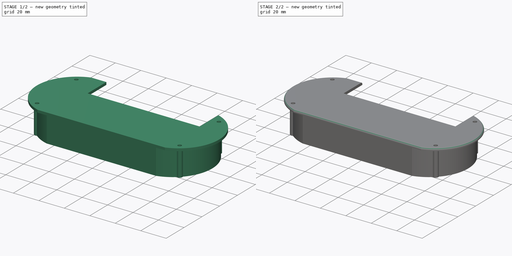
[diagram: build sequence overview — one tinted view per stage of 2, left to right]
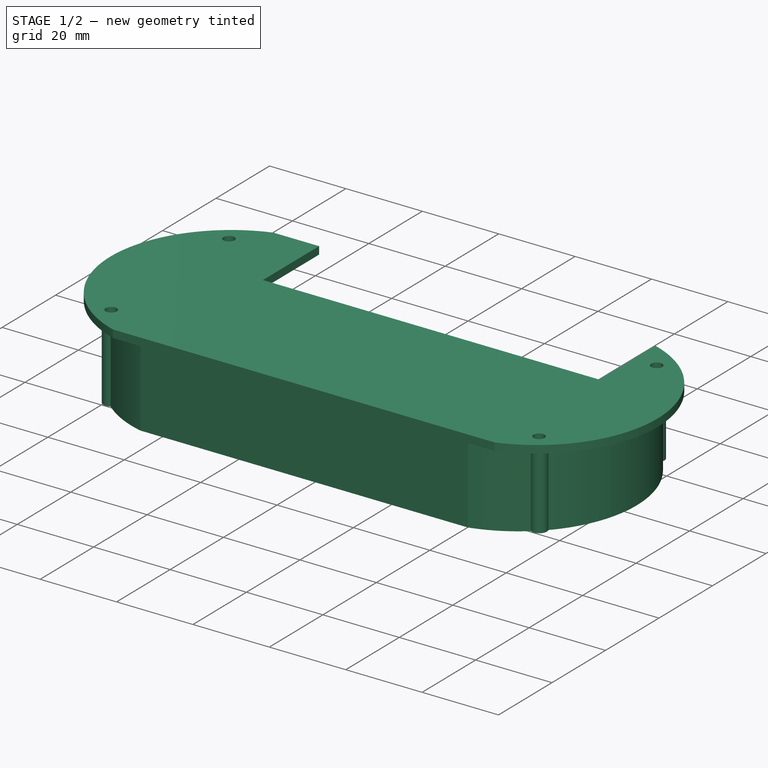
[diagram: stage 1 of 2 — iso view after this stage's code; geometry added in this stage tinted green]
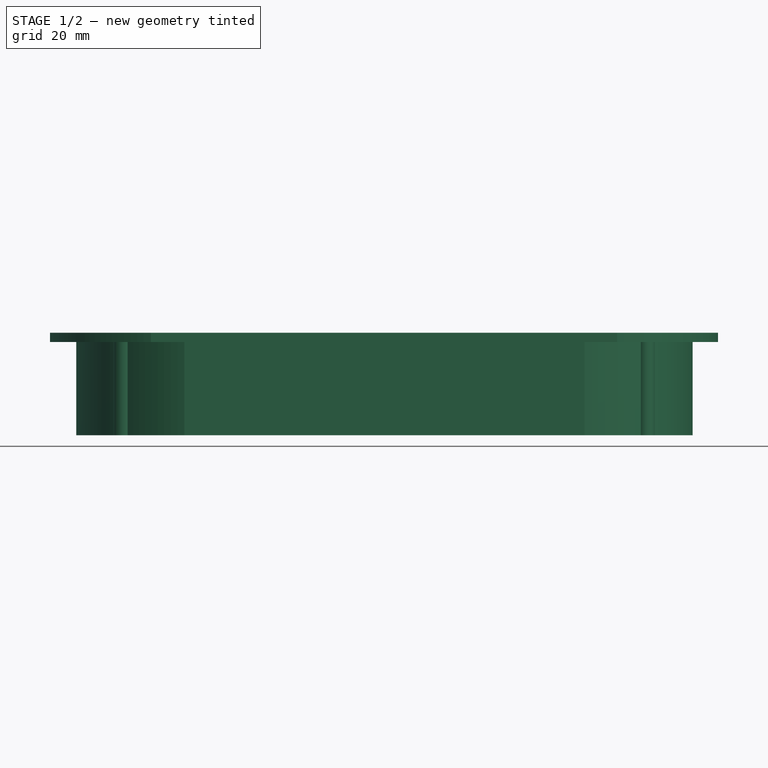
[diagram: stage 1 of 2 — front view after this stage's code; geometry added in this stage tinted green]
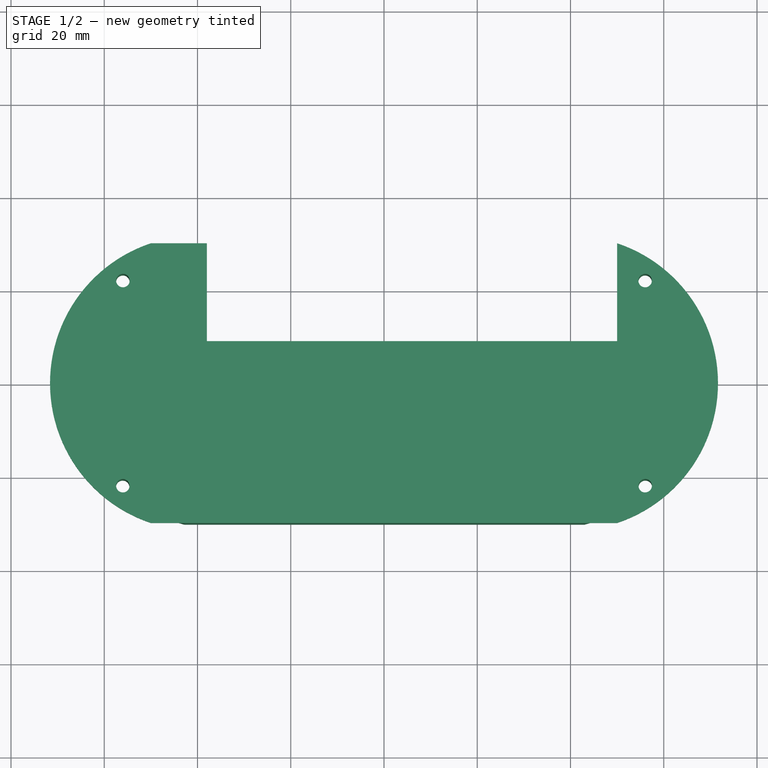
[diagram: stage 1 of 2 — top view after this stage's code; geometry added in this stage tinted green]
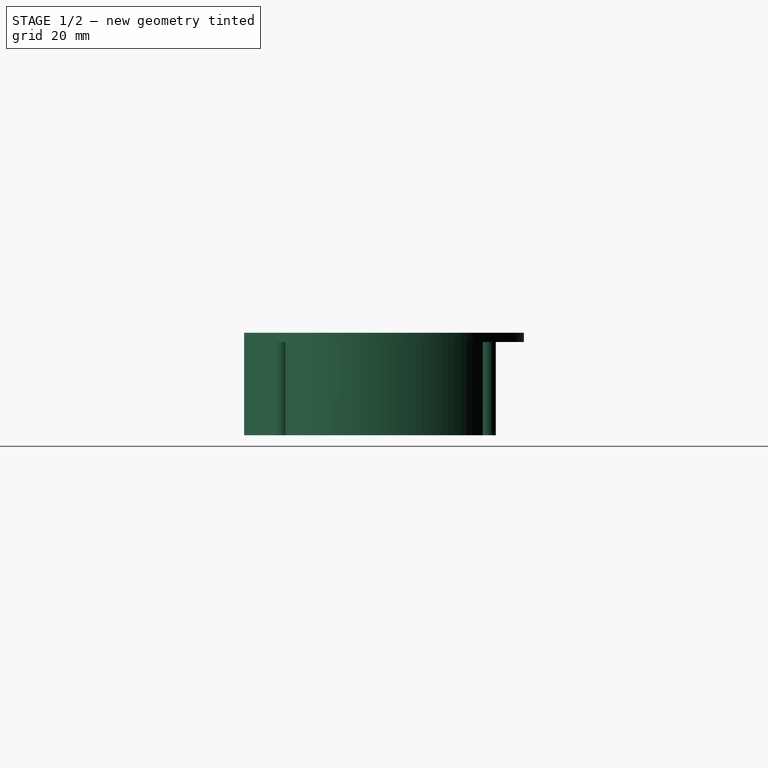
[diagram: stage 1 of 2 — right view after this stage's code; geometry added in this stage tinted green]
FCSTD DOCUMENT  (FreeCAD 0.20R29410 (Git))
Label: ggp-backplate
License: All rights reserved
LicenseURL: http://en.wikipedia.org/wiki/All_rights_reserved
objects: Sketcher::SketchObject×4, PartDesign::Pad×2, PartDesign::Pocket×2, PartDesign::Fillet×1, PartDesign::Body×1
note: 15 computed .brp shape members not serialized (recipe doc carries the construction recipe); baked Part::Feature solids carry a one-line shape summary decoded from their .brp

FEATURE [Sketcher::SketchObject] Sketch
  FullyConstrained = true
  MapMode = 5
  Support = -> [XY_Plane001]
  sketch-geometry (4):
    g0: LineSegment StartX=-50 StartY=30 StartZ=0 EndX=50 EndY=30 EndZ=0
    g1: LineSegment StartX=-50 StartY=-30 StartZ=0 EndX=50 EndY=-30 EndZ=0
    g2: ArcOfCircle CenterX=-40.0088 CenterY=0 CenterZ=0 NormalX=0 NormalY=0 NormalZ=1 AngleXU=0 Radius=31.62 StartAngle=1.89228 EndAngle=4.3909
    g3: ArcOfCircle CenterX=40.0088 CenterY=0 CenterZ=0 NormalX=0 NormalY=0 NormalZ=1 AngleXU=0 Radius=31.62 StartAngle=5.03388 EndAngle=7.53249
  constraints (14):
    c: Horizontal(g0)
    c: Horizontal(g1)
    c: PointOnObject(g2,g-1)
    c: Coincident(g2,g0)
    c: Coincident(g2,g1)
    c: PointOnObject(g3,g-1)
    c: Coincident(g3,g0)
    c: Coincident(g3,g1)
    c: DistanceX(g0) = 50
    c: DistanceY(g0) = 30
    c: DistanceX(g1) = 50
    c: DistanceX(g1) = -50
    c: Radius(g3) = 31.62
    c: Radius(g2) = 31.62
FEATURE [PartDesign::Pad] Pad
  Direction = (0,0,1)
  Length = 2
  Length2 = 10
  Profile = -> Sketch
  ReferenceAxis = -> Sketch [N_Axis]
  Type = 0
FEATURE [Sketcher::SketchObject] Sketch001
  ExternalGeometry = -> [Pad]
  FullyConstrained = true
  MapMode = 5
  Placement = pos=(0,0,2) rot=(0,0,1;0rad)
  Support = -> [Pad]
  sketch-geometry (4):
    g0: LineSegment StartX=-38 StartY=30 StartZ=0 EndX=-38 EndY=9 EndZ=0
    g1: LineSegment StartX=50 StartY=30 StartZ=0 EndX=50 EndY=9 EndZ=0
    g2: LineSegment StartX=50 StartY=9 StartZ=0 EndX=-38 EndY=9 EndZ=0
    g3: LineSegment StartX=-38 StartY=30 StartZ=0 EndX=50 EndY=30 EndZ=0
  constraints (12):
    c: PointOnObject(g0,g-3)
    c: Vertical(g0)
    c: PointOnObject(g1,g-3)
    c: Vertical(g1)
    c: Coincident(g2,g1)
    c: Coincident(g2,g0)
    c: Horizontal(g2)
    c: Coincident(g3,g0)
    c: Coincident(g3,g1)
    c: DistanceY(g1) = 9
    c: DistanceX(g0) = -38
    c: DistanceX(g1) = 50
FEATURE [PartDesign::Pocket] Pocket
  BaseFeature = -> Pad
  Direction = (0,0,-1)
  Length = 5
  Length2 = 5
  Profile = -> Sketch001
  ReferenceAxis = -> Sketch001 [N_Axis]
  Type = 0
FEATURE [Sketcher::SketchObject] Sketch002
  FullyConstrained = true
  MapMode = 5
  Placement = pos=(0,0,2) rot=(0,0,1;0rad)
  Support = -> [Pocket]
  sketch-geometry (4):
    g0: Circle CenterX=-56 CenterY=22 CenterZ=0 NormalX=0 NormalY=0 NormalZ=1 AngleXU=0 Radius=1.45
    g1: Circle CenterX=-56 CenterY=-22 CenterZ=0 NormalX=0 NormalY=0 NormalZ=1 AngleXU=0 Radius=1.45
    g2: Circle CenterX=56 CenterY=22 CenterZ=0 NormalX=0 NormalY=0 NormalZ=1 AngleXU=0 Radius=1.45
    g3: Circle CenterX=56 CenterY=-22 CenterZ=0 NormalX=0 NormalY=0 NormalZ=1 AngleXU=0 Radius=1.45
  constraints (12):
    c: Radius(g0) = 1.45
    c: DistanceX(g0) = -56
    c: DistanceY(g0) = 22
    c: Radius(g1) = 1.45
    c: DistanceX(g1) = -56
    c: DistanceY(g1) = -22
    c: Radius(g2) = 1.45
    c: Radius(g3) = 1.45
    c: DistanceX(g3) = 56
    c: DistanceY(g3) = -22
    c: DistanceX(g2) = 56
    c: DistanceY(g2) = 22
FEATURE [PartDesign::Pocket] Pocket001
  BaseFeature = -> Pocket
  Direction = (0,0,-1)
  Length = 5
  Length2 = 5
  Profile = -> Sketch002
  ReferenceAxis = -> Sketch002 [N_Axis]
  Type = 0
FEATURE [Sketcher::SketchObject] Sketch005
  ExternalGeometry = -> [Pocket001]
  FullyConstrained = true
  MapMode = 2
  Placement = pos=(0,0,0) rot=(1,0,0;3.14159rad)
  Support = -> [Sketch005]
  sketch-geometry (20):
    g0: Circle CenterX=-56.042 CenterY=22 CenterZ=0 NormalX=0 NormalY=0 NormalZ=1 AngleXU=0 Radius=1.45
    g1: Circle CenterX=56.0457 CenterY=22 CenterZ=0 NormalX=0 NormalY=0 NormalZ=1 AngleXU=0 Radius=1.45
    g2: Circle CenterX=56 CenterY=-22 CenterZ=0 NormalX=0 NormalY=0 NormalZ=1 AngleXU=0 Radius=1.45
    g3: Circle CenterX=-56 CenterY=-22 CenterZ=0 NormalX=0 NormalY=0 NormalZ=1 AngleXU=0 Radius=1.45
    g4: ArcOfCircle CenterX=35.1887 CenterY=0 CenterZ=0 NormalX=0 NormalY=0 NormalZ=1 AngleXU=0 Radius=31 StartAngle=5.53098 EndAngle=7.03394
    g5: ArcOfCircle CenterX=35 CenterY=0 CenterZ=0 NormalX=0 NormalY=0 NormalZ=1 AngleXU=0 Radius=30 StartAngle=5.53933 EndAngle=7.02622
    g6: ArcOfCircle CenterX=-35 CenterY=0 CenterZ=0 NormalX=0 NormalY=0 NormalZ=1 AngleXU=0 Radius=31 StartAngle=2.39648 EndAngle=3.88796
    g7: ArcOfCircle CenterX=-34.9242 CenterY=0 CenterZ=0 NormalX=0 NormalY=0 NormalZ=1 AngleXU=0 Radius=30 StartAngle=2.39981 EndAngle=3.8841
    g8: ArcOfCircle CenterX=-35 CenterY=0 CenterZ=0 NormalX=0 NormalY=0 NormalZ=1 AngleXU=0 Radius=31 StartAngle=1.82548 EndAngle=2.2714
    g9: ArcOfCircle CenterX=-34.9242 CenterY=0 CenterZ=0 NormalX=0 NormalY=0 NormalZ=1 AngleXU=0 Radius=30 StartAngle=1.82975 EndAngle=2.27166
    g10: ArcOfCircle CenterX=35.1887 CenterY=0 CenterZ=0 NormalX=0 NormalY=0 NormalZ=1 AngleXU=0 Radius=31 StartAngle=0.87337 EndAngle=1.31611
    g11: ArcOfCircle CenterX=35 CenterY=0 CenterZ=0 NormalX=0 NormalY=0 NormalZ=1 AngleXU=0 Radius=30 StartAngle=0.872092 EndAngle=1.31184
    g12: LineSegment StartX=-42.6064 StartY=28.9997 StartZ=0 EndX=42.6821 EndY=28.9997 EndZ=0
    g13: LineSegment StartX=42.9989 StartY=30 StartZ=0 EndX=-42.8103 EndY=30 EndZ=0
    g14: ArcOfCircle CenterX=56.0457 CenterY=22 CenterZ=0 NormalX=0 NormalY=0 NormalZ=1 AngleXU=0 Radius=2 StartAngle=5.84308 EndAngle=8.34742
    g15: ArcOfCircle CenterX=56.0457 CenterY=22 CenterZ=0 NormalX=0 NormalY=0 NormalZ=1 AngleXU=0 Radius=2 StartAngle=2.63507 EndAngle=5.26325
    g16: ArcOfCircle CenterX=56 CenterY=-22 CenterZ=0 NormalX=0 NormalY=0 NormalZ=1 AngleXU=0 Radius=2 StartAngle=1.00284 EndAngle=6.70527
    g17: ArcOfCircle CenterX=-56.042 CenterY=22 CenterZ=0 NormalX=0 NormalY=0 NormalZ=1 AngleXU=0 Radius=2 StartAngle=1.01406 EndAngle=3.65382
    g18: ArcOfCircle CenterX=-56.042 CenterY=22 CenterZ=0 NormalX=0 NormalY=0 NormalZ=1 AngleXU=0 Radius=2 StartAngle=4.18866 EndAngle=6.76599
    g19: ArcOfCircle CenterX=-56 CenterY=-22 CenterZ=0 NormalX=0 NormalY=0 NormalZ=1 AngleXU=0 Radius=2 StartAngle=2.64562 EndAngle=8.39353
  constraints (64):
    c: Radius(g1) = 1.45
    c: Radius(g2) = 1.45
    c: Radius(g0) = 1.45
    c: Radius(g3) = 1.45
    c: PointOnObject(g4,g-1)
    c: PointOnObject(g5,g-1)
    c: PointOnObject(g6,g-1)
    c: PointOnObject(g7,g-1)
    c: Coincident(g8,g6)
    c: PointOnObject(g8,g-4)
    c: Coincident(g9,g7)
    c: Coincident(g10,g4)
    c: PointOnObject(g10,g-4)
    c: Coincident(g11,g5)
    c: Coincident(g12,g9)
    c: Coincident(g12,g11)
    c: Horizontal(g12)
    c: Coincident(g13,g10)
    c: Coincident(g13,g8)
    c: Radius(g6) = 31
    c: Radius(g7) = 30
    c: Radius(g8) = 31
    c: Radius(g9) = 30
    c: Radius(g5) = 30
    c: Radius(g4) = 31
    c: Radius(g11) = 30
    c: Radius(g10) = 31
    c: DistanceY(g11) = 28.9997
    c: DistanceX(g10) = 42.9989
    c: DistanceX(g11) = 42.6821
    c: Coincident(g14,g1)
    c: Coincident(g14,g10)
    c: Coincident(g14,g4)
    c: Coincident(g15,g1)
    c: Coincident(g15,g5)
    c: Coincident(g15,g11)
    c: Coincident(g16,g2)
    c: Coincident(g16,g5)
    c: Coincident(g16,g4)
    c: Coincident(g17,g0)
    c: Coincident(g17,g8)
    c: Coincident(g17,g6)
    c: Coincident(g18,g0)
    c: Coincident(g18,g9)
    c: Coincident(g18,g7)
    c: Coincident(g19,g3)
    c: Coincident(g19,g7)
    c: Coincident(g19,g6)
    c: Radius(g19) = 2
    c: Radius(g17) = 2
    c: Radius(g18) = 2
    c: Radius(g14) = 2
    c: Radius(g15) = 2
    c: Radius(g16) = 2
    c: DistanceX(g9) = -42.6064
    c: DistanceX(g0) = -56.042
    c: DistanceY(g0) = 22
    c: DistanceX(g3) = -56
    c: DistanceY(g3) = -22
    c: DistanceX(g6) = -57.759
    c: DistanceX(g2) = 56
    c: DistanceY(g2) = -22
    c: DistanceX(g1) = 56.0457
    c: DistanceY(g1) = 22
FEATURE [PartDesign::Pad] Pad001
  BaseFeature = -> Pocket001
  Direction = (0,0,-1)
  Length = 20
  Length2 = 10
  Profile = -> Sketch005
  ReferenceAxis = -> Sketch005 [N_Axis]
  Type = 0
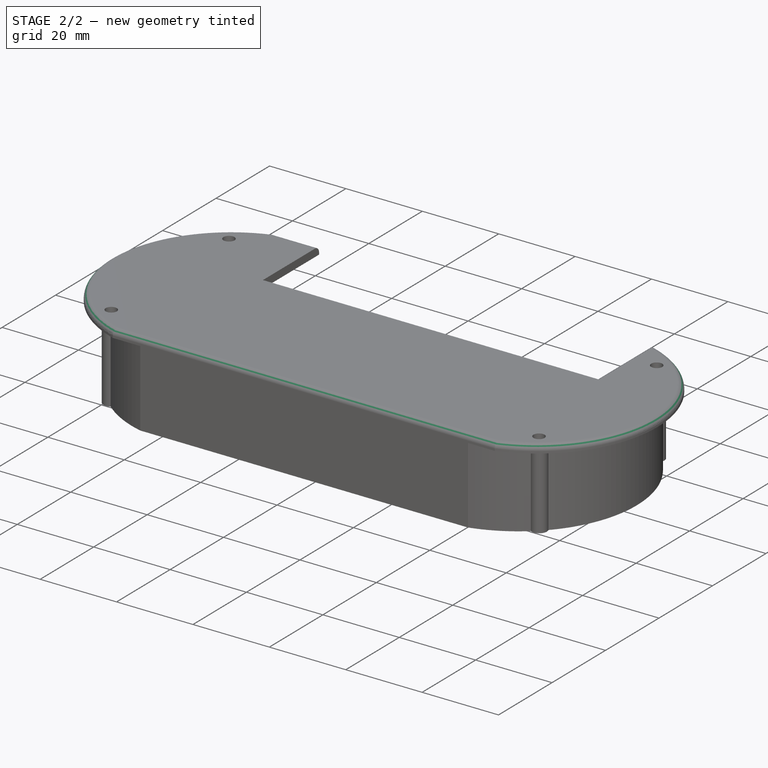
[diagram: stage 2 of 2 — iso view after this stage's code; geometry added in this stage tinted green]
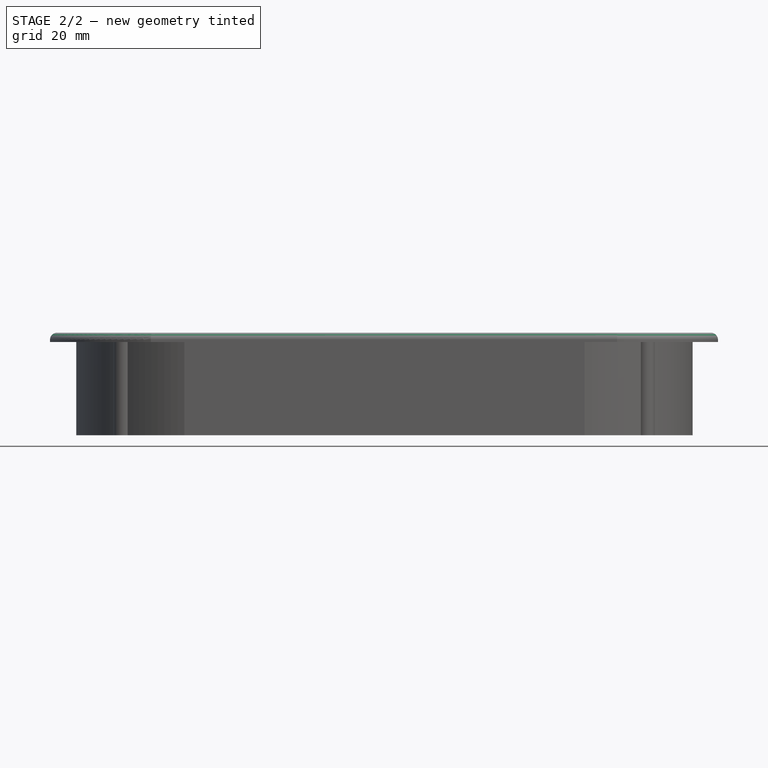
[diagram: stage 2 of 2 — front view after this stage's code; geometry added in this stage tinted green]
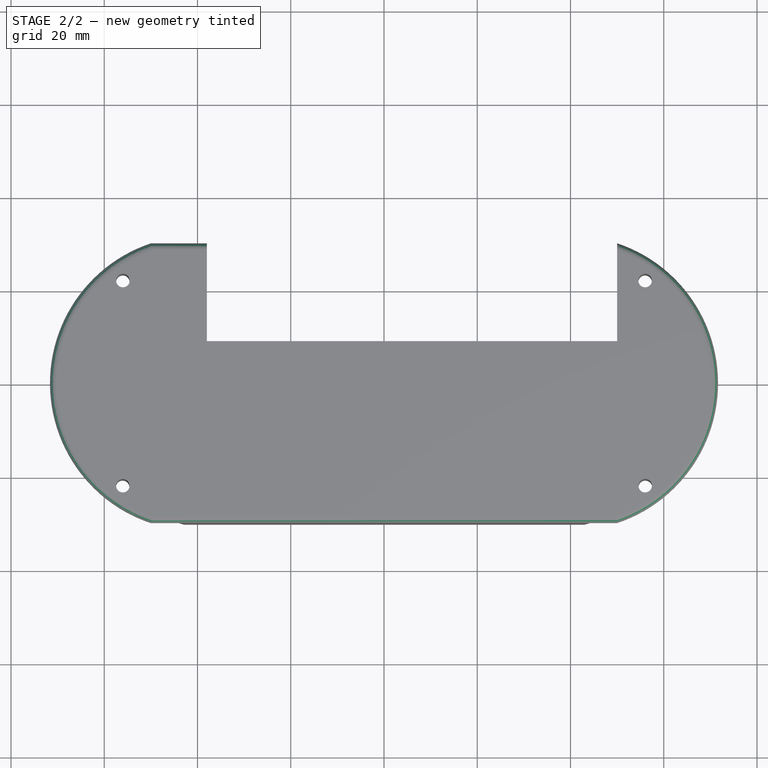
[diagram: stage 2 of 2 — top view after this stage's code; geometry added in this stage tinted green]
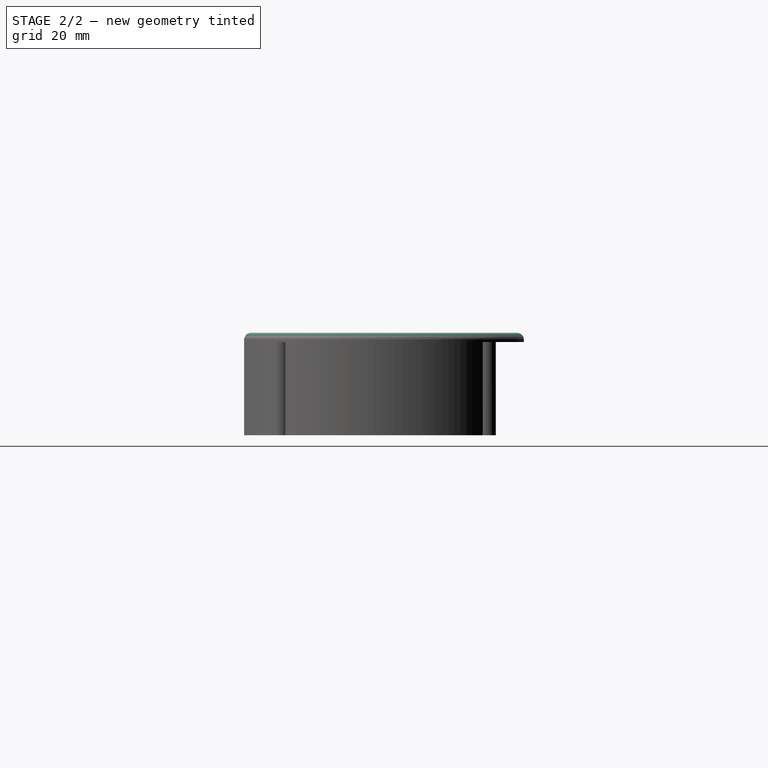
[diagram: stage 2 of 2 — right view after this stage's code; geometry added in this stage tinted green]
FEATURE [PartDesign::Fillet] Fillet
  Base = -> Pad001 [Edge4,Edge7,Edge12,Edge34]
  BaseFeature = -> Pad001
  Radius = 1.5
  SupportTransform = false
  UseAllEdges = false
FEATURE [PartDesign::Body] Body
  Group = -> [Sketch,Pad,Sketch001,Pocket,Sketch002,Pocket001,Sketch005,Pad001,Fillet]
  Origin = -> Origin
  Tip = -> Fillet
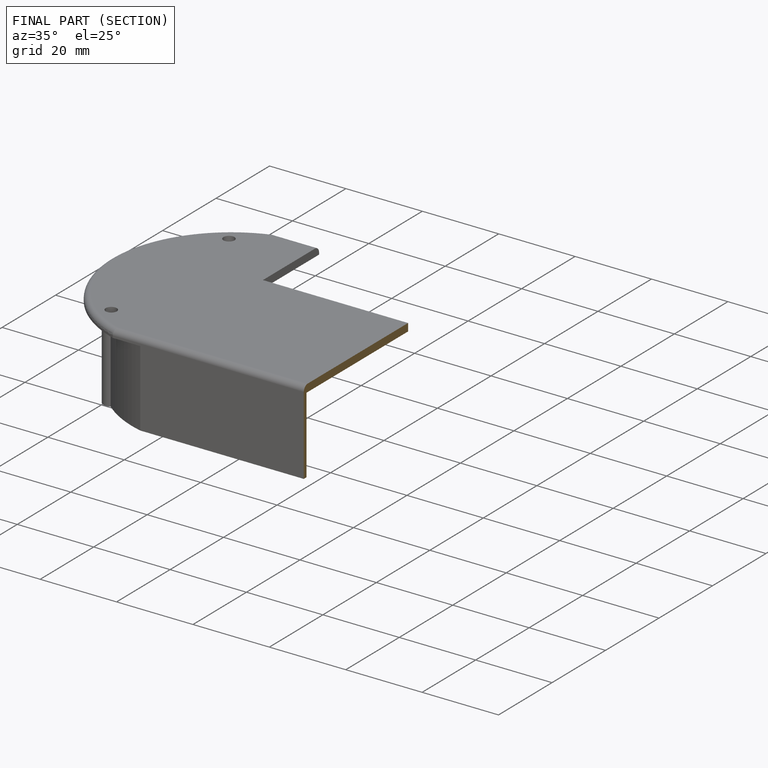
[diagram: finished part — half-section view (interior)]
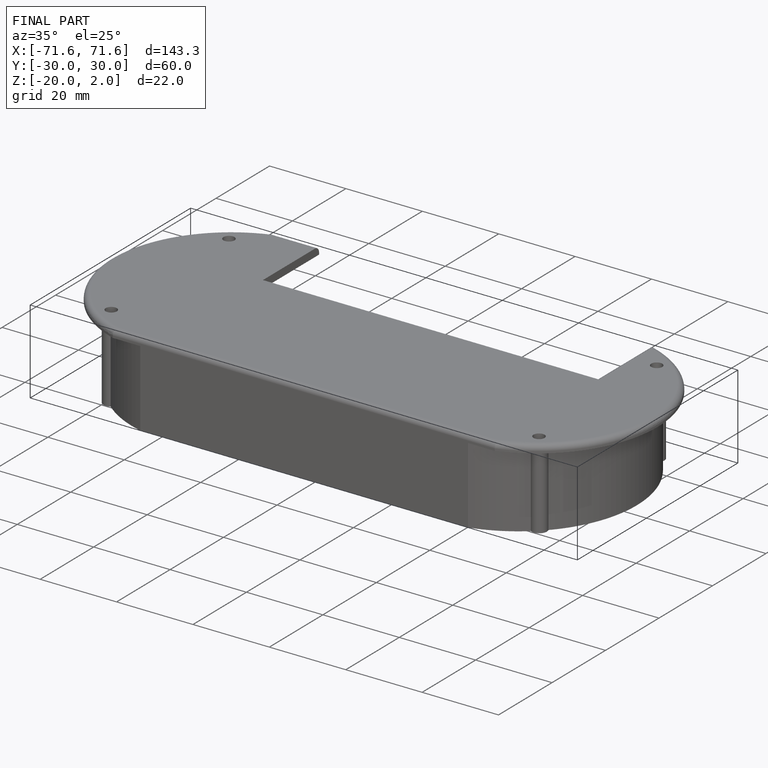
[diagram: finished part — iso view with bounding-box wireframe]
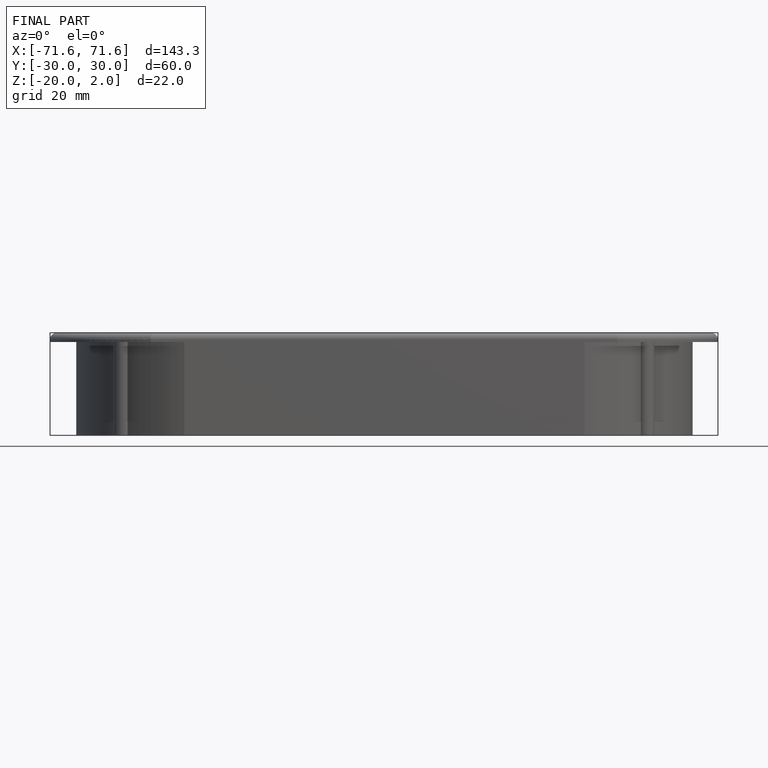
[diagram: finished part — front view with bounding-box wireframe]
